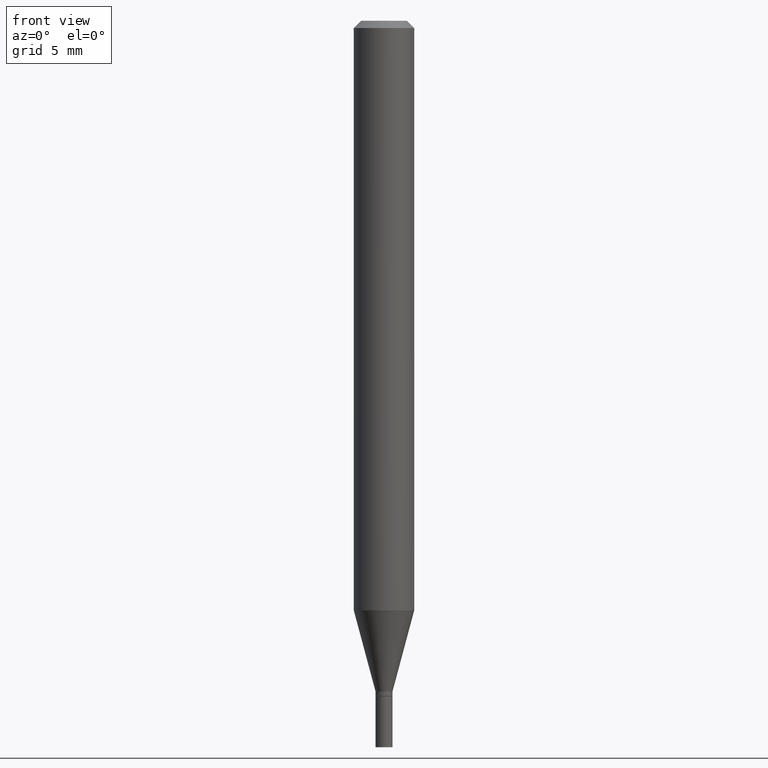
[diagram: clean part render]
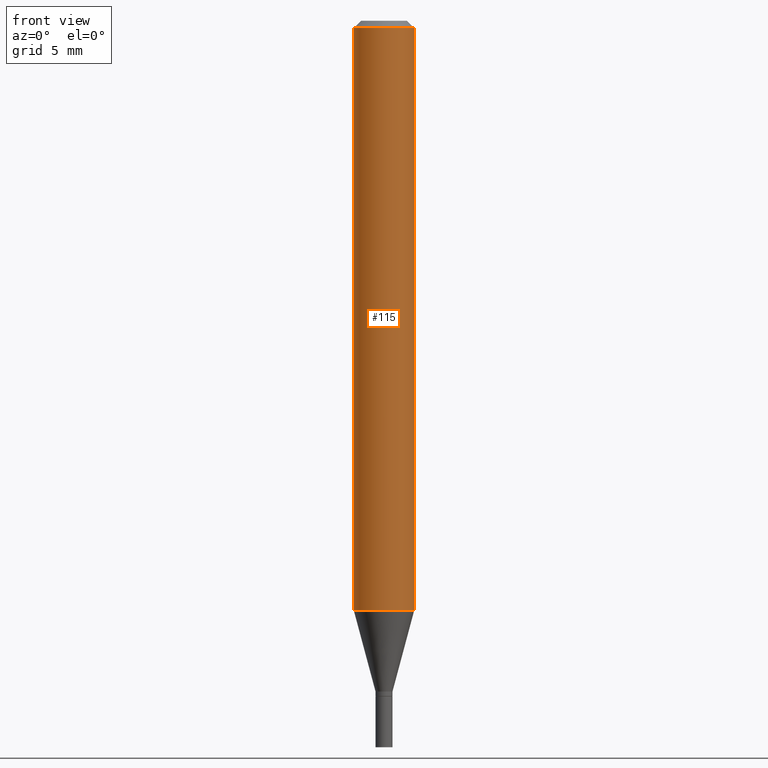
[diagram: same view with one face highlighted and labeled with its STEP entity id]
A machine part, front view. The second image highlights one B-rep face of the part: STEP entity #115.
In plain terms, the highlighted cylindrical surface (edge-blend (fillet) strip) has radius 1.5875 mm, axis along (-0, 0, 1).
Its self-contained STEP definition (entity closure, byte-faithful):
#11 = FACE_OUTER_BOUND ( 'NONE', #366, .T. ) ;
#16 = LINE ( 'NONE', #364, #180 ) ;
#24 = VERTEX_POINT ( 'NONE', #157 ) ;
#34 = EDGE_CURVE ( 'NONE', #244, #165, #234, .T. ) ;
#46 = AXIS2_PLACEMENT_3D ( 'NONE', #363, #293, #403 ) ;
#50 = DIRECTION ( 'NONE',  ( 1.000000000000000000, -6.982962677686266711E-15, 0.000000000000000000 ) ) ;
#65 = DIRECTION ( 'NONE',  ( -2.445468806185136597E-29, 3.491481338843145583E-15, 1.000000000000000000 ) ) ;
#75 = CARTESIAN_POINT ( 'NONE',  ( 0.06250000000000000000, -4.888073874380388472E-16, -0.01499999999999999944 ) ) ;
#87 = CARTESIAN_POINT ( 'NONE',  ( 2.976276674081067124E-29, -4.249334295536902658E-15, -1.217057713659400964 ) ) ;
#88 = ORIENTED_EDGE ( 'NONE', *, *, #315, .F. ) ;
#92 = DIRECTION ( 'NONE',  ( 1.000000000000000000, -6.982962677686270655E-15, 0.000000000000000000 ) ) ;
#103 = DIRECTION ( 'NONE',  ( -2.445468806185136877E-29, 3.491481338843145188E-15, 1.000000000000000000 ) ) ;
#110 = CIRCLE ( 'NONE', #331, 0.06250000000000000000 ) ;
#111 = ORIENTED_EDGE ( 'NONE', *, *, #281, .T. ) ;
#115 = ADVANCED_FACE ( 'NONE', ( #11 ), #220, .T. ) ;
#134 = CARTESIAN_POINT ( 'NONE',  ( 0.06250000000000000000, -4.364351673553916694E-16, 3.047610484872459871E-30 ) ) ;
#137 = EDGE_CURVE ( 'NONE', #24, #140, #110, .T. ) ;
#140 = VERTEX_POINT ( 'NONE', #75 ) ;
#157 = CARTESIAN_POINT ( 'NONE',  ( -0.06250000000000000000, -1.706764047959712450E-15, -0.01499999999999999944 ) ) ;
#165 = VERTEX_POINT ( 'NONE', #368 ) ;
#180 = VECTOR ( 'NONE', #324, 39.37007874015748143 ) ;
#197 = CARTESIAN_POINT ( 'NONE',  ( -0.06249999999999999306, -3.805245085686840042E-15, -1.217057713659400964 ) ) ;
#204 = ORIENTED_EDGE ( 'NONE', *, *, #34, .T. ) ;
#209 = CARTESIAN_POINT ( 'NONE',  ( 3.668203209277705088E-31, -5.237222008264718399E-17, -0.01499999999999999944 ) ) ;
#218 = LINE ( 'NONE', #134, #253 ) ;
#220 = CYLINDRICAL_SURFACE ( 'NONE', #46, 0.06250000000000000000 ) ;
#234 = CIRCLE ( 'NONE', #453, 0.06250000000000000000 ) ;
#244 = VERTEX_POINT ( 'NONE', #197 ) ;
#253 = VECTOR ( 'NONE', #103, 39.37007874015748143 ) ;
#271 = DIRECTION ( 'NONE',  ( -2.445468806185136597E-29, 3.491481338843145583E-15, 1.000000000000000000 ) ) ;
#281 = EDGE_CURVE ( 'NONE', #165, #140, #218, .T. ) ;
#293 = DIRECTION ( 'NONE',  ( -2.445468806185136597E-29, 3.491481338843145583E-15, 1.000000000000000000 ) ) ;
#315 = EDGE_CURVE ( 'NONE', #244, #24, #16, .T. ) ;
#324 = DIRECTION ( 'NONE',  ( -2.445468806185136877E-29, 3.491481338843145188E-15, 1.000000000000000000 ) ) ;
#331 = AXIS2_PLACEMENT_3D ( 'NONE', #209, #65, #50 ) ;
#353 = ORIENTED_EDGE ( 'NONE', *, *, #137, .F. ) ;
#363 = CARTESIAN_POINT ( 'NONE',  ( 0.000000000000000000, 0.000000000000000000, 0.000000000000000000 ) ) ;
#364 = CARTESIAN_POINT ( 'NONE',  ( -0.06250000000000000000, 4.440892098500626162E-16, -3.074334431409316114E-30 ) ) ;
#366 = EDGE_LOOP ( 'NONE', ( #88, #204, #111, #353 ) ) ;
#368 = CARTESIAN_POINT ( 'NONE',  ( 0.06249999999999999306, -4.685769462892295117E-15, -1.217057713659400964 ) ) ;
#403 = DIRECTION ( 'NONE',  ( 1.000000000000000000, -6.982962677686266711E-15, 4.876176775795935793E-29 ) ) ;
#453 = AXIS2_PLACEMENT_3D ( 'NONE', #87, #271, #92 ) ;